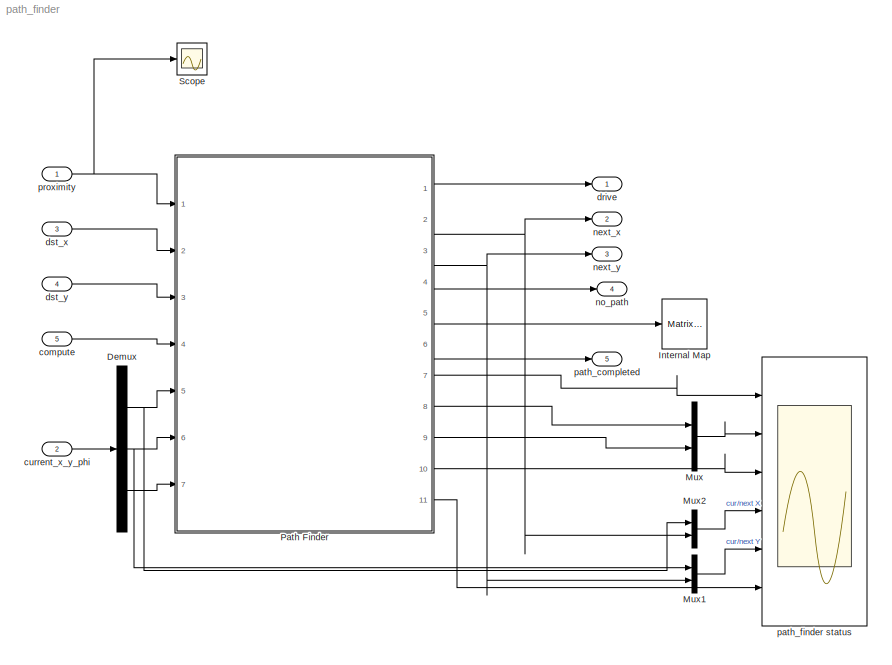
MODEL path_finder
KIND model
BLOCK [Demux] Demux
  DisplayOption = bar
  Outputs = 3
  Ports = [1, 3]
  SID = 15
BLOCK [Reference] Internal Map  REF=dspsnks4/Matrix\nViewer
  AxisColorbar = off
  AxisOrigin = Lower left corner
  AxisParams = off
  AxisTickMode = Auto
  AxisZoom = off
  CMapStr = hot(256)
  FigPos = get(0,'defaultfigureposition')
  ImageParams = off
  Ports = [1]
  SID = 14
  ShowPortLabels = off
  SourceBlock = dspsnks4/Matrix\nViewer
  SourceType = Matrix Viewer
  XLabel = X-axis
  XTickRange = [0 1]
  YLabel = Y-axis
  YMax = 1
  YMin = 0
  YTickRange = [0 1]
  ZLabel = Z-axis
BLOCK [Mux] Mux
  DisplayOption = bar
  Inputs = 2
  Ports = [2, 1]
  SID = 21
BLOCK [Mux] Mux1
  DisplayOption = bar
  Inputs = 2
  Ports = [2, 1]
  SID = 22
BLOCK [Mux] Mux2
  DisplayOption = bar
  Inputs = 2
  Ports = [2, 1]
  SID = 23
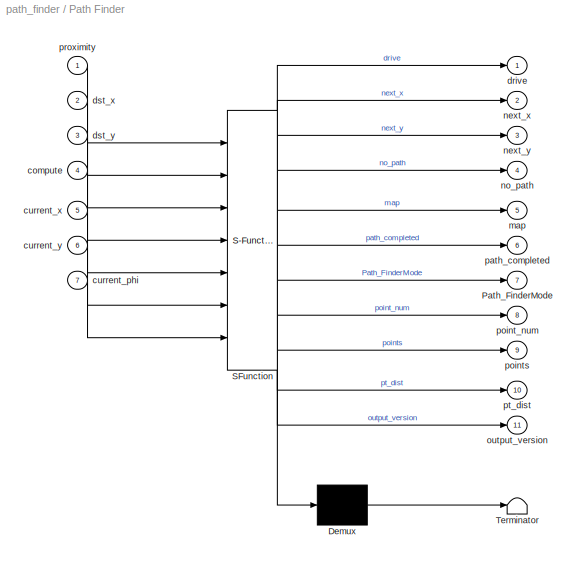
BLOCK [SubSystem] Path Finder
  ErrorFcn = Stateflow.Translate.translate
  PermitHierarchicalResolution = ExplicitOnly
  Ports = [7, 11]
  RequestExecContextInheritance = off
  SFBlockType = Chart
  SID = 1
  TreatAsAtomicUnit = on
  Variant = off
BLOCK [Demux] Path Finder/ Demux 
  Outputs = 1
  Ports = [1, 1]
  SID = 1::78
BLOCK [S-Function] Path Finder/ SFunction 
  EnableBusSupport = on
  FunctionName = sf_sfun
  PortCounts = [7 12]
  Ports = [7, 12]
  SFunctionDeploymentMode = off
  SID = 1::77
  Tag = Stateflow S-Function path_finder 3
BLOCK [Terminator] Path Finder/ Terminator 
  SID = 1::110
BLOCK [Outport] Path Finder/Path_FinderMode
  IconDisplay = Port number
  Port = 7
  SID = 1::118
BLOCK [Inport] Path Finder/compute
  IconDisplay = Port number
  Port = 4
  SID = 1::106
BLOCK [Inport] Path Finder/current_phi
  IconDisplay = Port number
  Port = 7
  SID = 1::114
BLOCK [Inport] Path Finder/current_x
  IconDisplay = Port number
  Port = 5
  SID = 1::112
BLOCK [Inport] Path Finder/current_y
  IconDisplay = Port number
  Port = 6
  SID = 1::113
BLOCK [Outport] Path Finder/drive
  IconDisplay = Port number
  SID = 1::108
BLOCK [Inport] Path Finder/dst_x
  IconDisplay = Port number
  Port = 2
  SID = 1::95
BLOCK [Inport] Path Finder/dst_y
  IconDisplay = Port number
  Port = 3
  SID = 1::96
BLOCK [Outport] Path Finder/map
  IconDisplay = Port number
  Port = 5
  SID = 1::111
BLOCK [Outport] Path Finder/next_x
  IconDisplay = Port number
  Port = 2
  SID = 1::101
BLOCK [Outport] Path Finder/next_y
  IconDisplay = Port number
  Port = 3
  SID = 1::102
BLOCK [Outport] Path Finder/no_path
  IconDisplay = Port number
  Port = 4
  SID = 1::109
BLOCK [Outport] Path Finder/output_version
  IconDisplay = Port number
  Port = 11
  SID = 1::124
BLOCK [Outport] Path Finder/path_completed
  IconDisplay = Port number
  Port = 6
  SID = 1::117
BLOCK [Outport] Path Finder/point_num
  IconDisplay = Port number
  Port = 8
  SID = 1::122
BLOCK [Outport] Path Finder/points
  IconDisplay = Port number
  Port = 9
  SID = 1::119
BLOCK [Inport] Path Finder/proximity
  IconDisplay = Port number
  SID = 1::105
BLOCK [Outport] Path Finder/pt_dist
  IconDisplay = Port number
  Port = 10
  SID = 1::123
BLOCK [Scope] Scope
  Ports = [1]
  SID = 17
  ScopeSpecificationString = Simulink.scopes.TimeScopeBlockCfg('CurrentConfiguration', extmgr.ConfigurationSet(extmgr.Configuration('Core','General UI',true),extmgr.Configuration('Core','Source UI',true),extmgr.Configuration('Sources','WiredSimulink',true),extmgr.Configuration('Visuals','Time Domain',true,'SerializedDisplays',{struct('MinYLimReal','-0.20432','MaxYLimReal','1.83892','YLabelReal','','MinYLimMag','0.00000','MaxY...<+1481ch>
BLOCK [Inport] compute
  IconDisplay = Port number
  Port = 5
  SID = 8
BLOCK [Inport] current_x_y_phi
  IconDisplay = Port number
  Port = 2
  PortDimensions = [3]
  SID = 3
BLOCK [Outport] drive
  IconDisplay = Port number
  SID = 10
BLOCK [Inport] dst_x
  IconDisplay = Port number
  Port = 3
  SID = 4
BLOCK [Inport] dst_y
  IconDisplay = Port number
  Port = 4
  SID = 5
BLOCK [Outport] next_x
  IconDisplay = Port number
  Port = 2
  SID = 11
BLOCK [Outport] next_y
  IconDisplay = Port number
  Port = 3
  SID = 12
BLOCK [Outport] no_path
  IconDisplay = Port number
  Port = 4
  SID = 13
BLOCK [Outport] path_completed
  IconDisplay = Port number
  Port = 5
  SID = 18
BLOCK [Scope] path_finder status
  NumInputPorts = 6
  Ports = [6]
  SID = 20
  ScopeSpecificationString = Simulink.scopes.TimeScopeBlockCfg('CurrentConfiguration', extmgr.ConfigurationSet(extmgr.Configuration('Core','General UI',true),extmgr.Configuration('Core','Source UI',true),extmgr.Configuration('Sources','WiredSimulink',true,'DataLoggingVariableName','ScopeData1'),extmgr.Configuration('Visuals','Time Domain',true,'SerializedDisplays',{struct('MinYLimReal','0.625','MaxYLimReal','4.375','YLabelRea...<+4988ch>
BLOCK [Inport] proximity
  IconDisplay = Port number
  PortDimensions = [8]
  SID = 2
NET Demux:1 -> Mux2:1, Path Finder:5
NET Demux:2 -> Mux1:1, Path Finder:6
LINE Demux:3 -> Path Finder:7
LINE Mux1:1 -> path_finder status:5
LINE Mux2:1 -> path_finder status:4
LINE Mux:1 -> path_finder status:2
LINE Path Finder/ Demux :1 -> Path Finder/ Terminator :1
LINE Path Finder/ SFunction :1 -> Path Finder/ Demux :1
LINE Path Finder/ SFunction :10 -> Path Finder/points:1
LINE Path Finder/ SFunction :11 -> Path Finder/pt_dist:1
LINE Path Finder/ SFunction :12 -> Path Finder/output_version:1
LINE Path Finder/ SFunction :2 -> Path Finder/drive:1
LINE Path Finder/ SFunction :3 -> Path Finder/next_x:1
LINE Path Finder/ SFunction :4 -> Path Finder/next_y:1
LINE Path Finder/ SFunction :5 -> Path Finder/no_path:1
LINE Path Finder/ SFunction :6 -> Path Finder/map:1
LINE Path Finder/ SFunction :7 -> Path Finder/path_completed:1
LINE Path Finder/ SFunction :8 -> Path Finder/Path_FinderMode:1
LINE Path Finder/ SFunction :9 -> Path Finder/point_num:1
LINE Path Finder/compute:1 -> Path Finder/ SFunction :4
LINE Path Finder/current_phi:1 -> Path Finder/ SFunction :7
LINE Path Finder/current_x:1 -> Path Finder/ SFunction :5
LINE Path Finder/current_y:1 -> Path Finder/ SFunction :6
LINE Path Finder/dst_x:1 -> Path Finder/ SFunction :2
LINE Path Finder/dst_y:1 -> Path Finder/ SFunction :3
LINE Path Finder/proximity:1 -> Path Finder/ SFunction :1
LINE Path Finder:1 -> drive:1
LINE Path Finder:10 -> path_finder status:3
LINE Path Finder:11 -> path_finder status:6
NET Path Finder:2 -> Mux2:2, next_x:1
NET Path Finder:3 -> Mux1:2, next_y:1
LINE Path Finder:4 -> no_path:1
LINE Path Finder:5 -> Internal Map:1
LINE Path Finder:6 -> path_completed:1
LINE Path Finder:7 -> path_finder status:1
LINE Path Finder:8 -> Mux:1
LINE Path Finder:9 -> Mux:2
LINE compute:1 -> Path Finder:4
LINE current_x_y_phi:1 -> Demux:1
LINE dst_x:1 -> Path Finder:2
LINE dst_y:1 -> Path Finder:3
NET proximity:1 -> Path Finder:1, Scope:1
note: NET lines group one-source signal fan-out (src -> all destinations, sorted); 1:1 wires keep LINE
CHART Path Finder states=8 transitions=8
  STATE_LABEL 'Inactive'
  STATE_LABEL '[row, col] = calculate_cell(distance, direction)'
  STATE_LABEL "Running\\nentry:\\n\tnext_x = current_x;\\n\tnext_y = current_y;\\nduring:\\n\tcoder.extrinsic('TinUtils.get_path_point');\\n\tif point_num <= points\\n\t    pt_dist = norm([current_x-next_x; current_y-next_y]);\\n\t    if  pt_dist <= drive_tolerance\\n\t        point_num = point_num + 1\\n\t        drive = 0;\\n\t        if point_num <= points\\n\t            next_x = TinUtils.convert_path_point(TinUtils.get_path_poin...<+319ch>"
  STATE_LABEL 'Collecting\\n\\nduring:\\n\tr = rows + 1 - floor(current_y);\\n\tc = floor(current_x);\\n\tmap(r-2, c) = 0;\\n\tmap(r-1, c-1) = 0;\\n\tmap(r-1, c) = 0;\\n\tmap(r-1, c+1) = 0;\\n\tmap(r, c+2) = 0;\\n\tmap(r, c+1) = 0;\\n\tmap(r, c) = 0;\\n\tmap(r, c-1) = 0;\\n\tmap(r, c-2) = 0;\\n\tmap(r+1, c-1) = 0;\\n\tmap(r+1, c) = 0;\\n\tmap(r+1, c+1) = 0;\\n\tmap(r+2, c) = 0;\\n\tfor i = 1:8\\n\t    if proximity(i) < 0\\n\t        continue;\\n\t    ...<+159ch>'
  STATE_LABEL 'WaitZero\\nex:\\npath_completed = 0;\\nno_path = 0;'
  STATE_LABEL 'is_blocked = path_blocked'
  STATE_LABEL "ComputePath\\nen:\\n\tcoder.extrinsic('TinUtils.calculate_path');\\n\tpath = TinUtils.calculate_path(map, dst_x, dst_y, current_x, current_y);\\n\tpoints = TinUtils.get_path_length(path);\\n\tif isempty(path)\\n\t    no_path = 1;<path> = 1;"
  STATE_LABEL '<!DOCTYPE HTML PUBLIC \\"-//W3C//DTD HTML 4.0//EN\\" \\"http://www.w3.org/TR/REC-html40/strict.dtd\\">\\n<html><head><meta name=\\"qrichtext\\" content=\\"1\\" /><style type=\\"text/css\\">\\np, li { white-space: pre-wrap; }\\n</style></head><body style=\\" font-family:\'Arial\'; font-size:12px; font-weight:400; font-style:normal;\\">\\n<p style=\\" margin-top:0px; margin-bottom:0px; margin-left:0px; margin-right:0p...<+567ch>'
note: 1 file-system path scrubbed to <path> (not preserved elsewhere — flat text is the only slx artifact)
